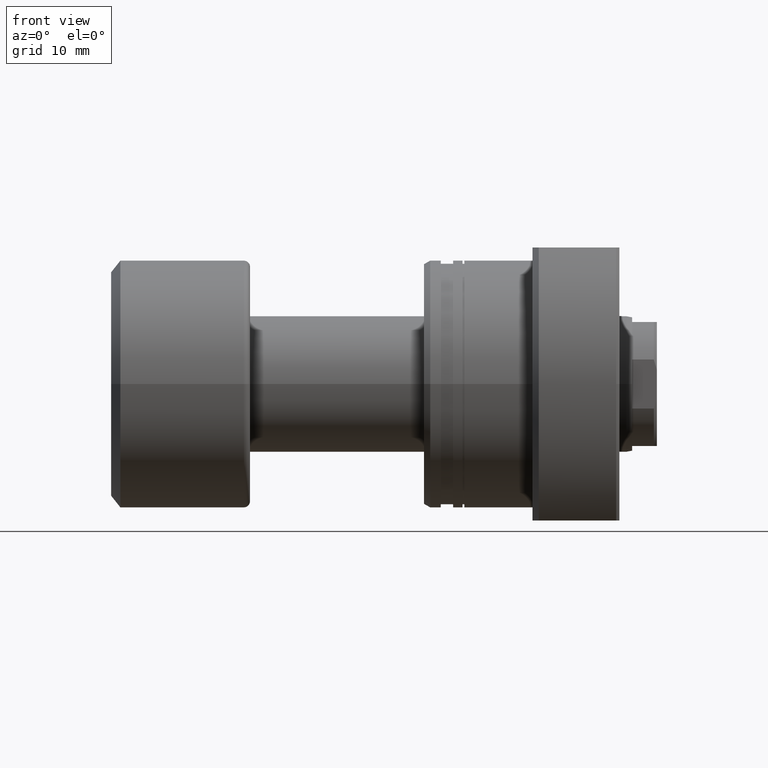
[diagram: clean part render]
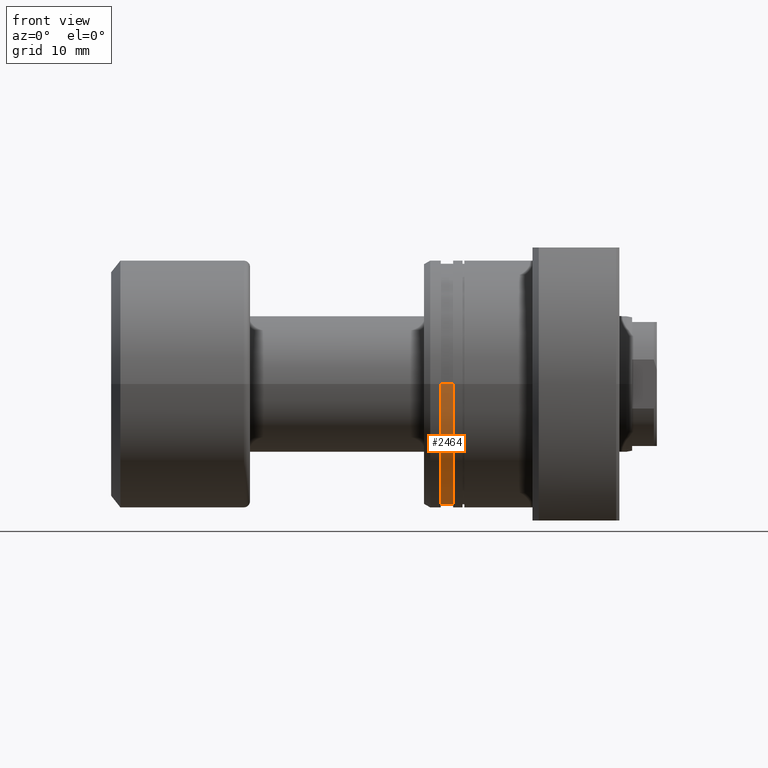
[diagram: same view with one face highlighted and labeled with its STEP entity id]
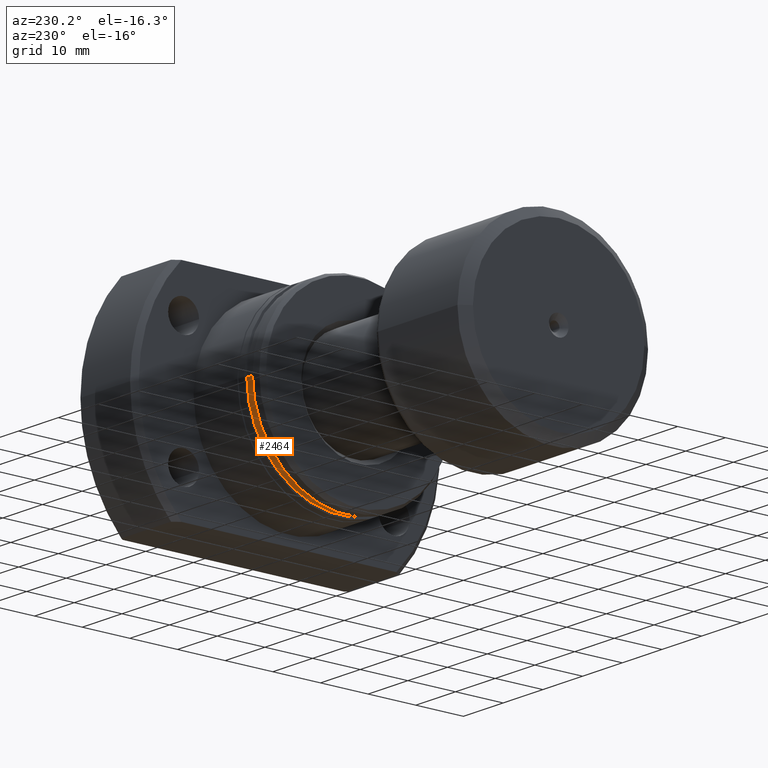
[diagram: same view with one face highlighted and labeled with its STEP entity id]
A machine part, front view. The second image highlights one B-rep face of the part: STEP entity #2464.
A second angle (auxiliary view) of the same face is appended — the face is thin or edge-on in the first view.
In plain terms, the highlighted cylindrical surface (partial cylindrical patch) has radius 19.5 mm, axis along (1, 0, 0).
Its self-contained STEP definition (entity closure, byte-faithful):
#66 = AXIS2_PLACEMENT_3D ( 'NONE', #1320, #3101, #2092 ) ;
#284 = CARTESIAN_POINT ( 'NONE',  ( 4.699999999998548006, 19.49999999999999645, 0.000000000000000000 ) ) ;
#317 = VECTOR ( 'NONE', #2796, 1000.000000000000000 ) ;
#352 = ORIENTED_EDGE ( 'NONE', *, *, #407, .T. ) ;
#399 = DIRECTION ( 'NONE',  ( -2.224004456380522643E-17, 1.000000000000000000, 0.000000000000000000 ) ) ;
#407 = EDGE_CURVE ( 'NONE', #2100, #753, #2579, .T. ) ;
#525 = DIRECTION ( 'NONE',  ( 1.000000000000000000, 2.721437331438560389E-17, -0.000000000000000000 ) ) ;
#558 = CARTESIAN_POINT ( 'NONE',  ( 2.699999999999785683, 19.49999999999999289, 0.000000000000000000 ) ) ;
#683 = ORIENTED_EDGE ( 'NONE', *, *, #3184, .F. ) ;
#753 = VERTEX_POINT ( 'NONE', #558 ) ;
#822 = CARTESIAN_POINT ( 'NONE',  ( 2.699999999999786127, 7.347880794883531049E-17, 0.000000000000000000 ) ) ;
#823 = FACE_OUTER_BOUND ( 'NONE', #1161, .T. ) ;
#848 = CYLINDRICAL_SURFACE ( 'NONE', #66, 19.49999999999999645 ) ;
#904 = EDGE_CURVE ( 'NONE', #2122, #2386, #939, .T. ) ;
#939 = CIRCLE ( 'NONE', #2439, 19.49999999999999645 ) ;
#1161 = EDGE_LOOP ( 'NONE', ( #683, #352, #1363, #2557 ) ) ;
#1225 = EDGE_CURVE ( 'NONE', #753, #2386, #2502, .T. ) ;
#1274 = CARTESIAN_POINT ( 'NONE',  ( 31.50000000000000000, 19.49999999999999645, 0.000000000000000000 ) ) ;
#1320 = CARTESIAN_POINT ( 'NONE',  ( 31.50000000000000000, 8.572527594031465301E-16, 0.000000000000000000 ) ) ;
#1354 = CARTESIAN_POINT ( 'NONE',  ( 4.699999999998549782, -19.49999999999999645, 2.388061258337338544E-15 ) ) ;
#1363 = ORIENTED_EDGE ( 'NONE', *, *, #1225, .T. ) ;
#1481 = VECTOR ( 'NONE', #1962, 1000.000000000000000 ) ;
#1962 = DIRECTION ( 'NONE',  ( 1.000000000000000000, 2.721437331438560389E-17, -0.000000000000000000 ) ) ;
#2025 = AXIS2_PLACEMENT_3D ( 'NONE', #822, #2609, #399 ) ;
#2092 = DIRECTION ( 'NONE',  ( 0.000000000000000000, 1.000000000000000000, 0.000000000000000000 ) ) ;
#2100 = VERTEX_POINT ( 'NONE', #3091 ) ;
#2122 = VERTEX_POINT ( 'NONE', #1354 ) ;
#2386 = VERTEX_POINT ( 'NONE', #284 ) ;
#2439 = AXIS2_PLACEMENT_3D ( 'NONE', #2491, #525, #2707 ) ;
#2464 = ADVANCED_FACE ( 'NONE', ( #823 ), #848, .T. ) ;
#2491 = CARTESIAN_POINT ( 'NONE',  ( 4.699999999998548894, 1.279075545775728376E-16, 0.000000000000000000 ) ) ;
#2502 = LINE ( 'NONE', #1274, #317 ) ;
#2557 = ORIENTED_EDGE ( 'NONE', *, *, #904, .F. ) ;
#2579 = CIRCLE ( 'NONE', #2025, 19.49999999999999289 ) ;
#2609 = DIRECTION ( 'NONE',  ( 1.000000000000000000, 2.721437331438560389E-17, -0.000000000000000000 ) ) ;
#2707 = DIRECTION ( 'NONE',  ( -4.448008912761044669E-17, 1.000000000000000000, 0.000000000000000000 ) ) ;
#2796 = DIRECTION ( 'NONE',  ( 1.000000000000000000, 2.721437331438560389E-17, -0.000000000000000000 ) ) ;
#2972 = CARTESIAN_POINT ( 'NONE',  ( 31.50000000000000000, -19.49999999999999645, 2.388061258337338544E-15 ) ) ;
#3091 = CARTESIAN_POINT ( 'NONE',  ( 2.699999999999786127, -19.49999999999999289, 2.388061258337338150E-15 ) ) ;
#3101 = DIRECTION ( 'NONE',  ( 1.000000000000000000, 2.721437331438560389E-17, -0.000000000000000000 ) ) ;
#3184 = EDGE_CURVE ( 'NONE', #2100, #2122, #3189, .T. ) ;
#3189 = LINE ( 'NONE', #2972, #1481 ) ;